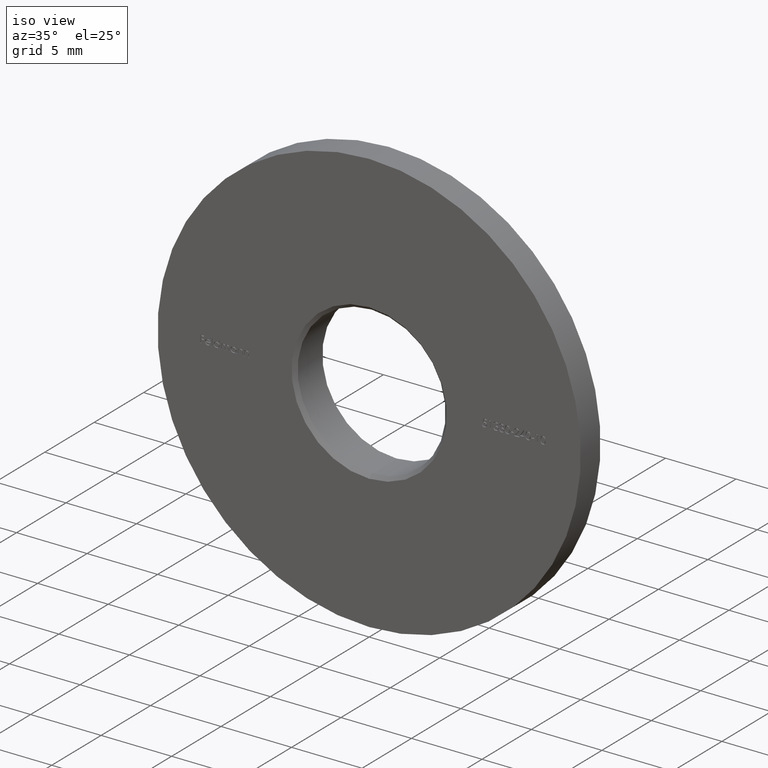
[diagram: clean part render]
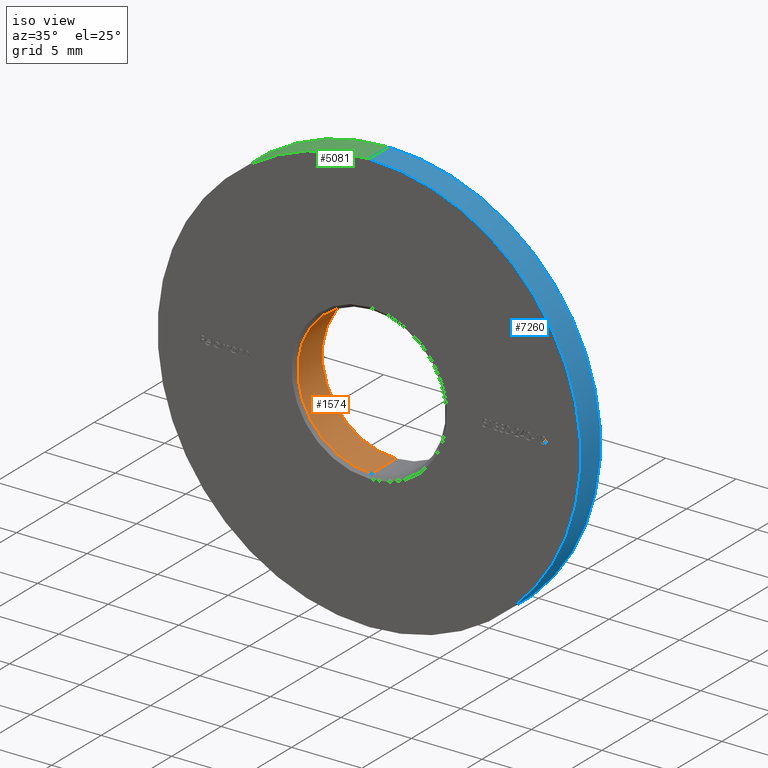
[diagram: same view with three faces highlighted in distinct colors, each labeled with its STEP entity id]
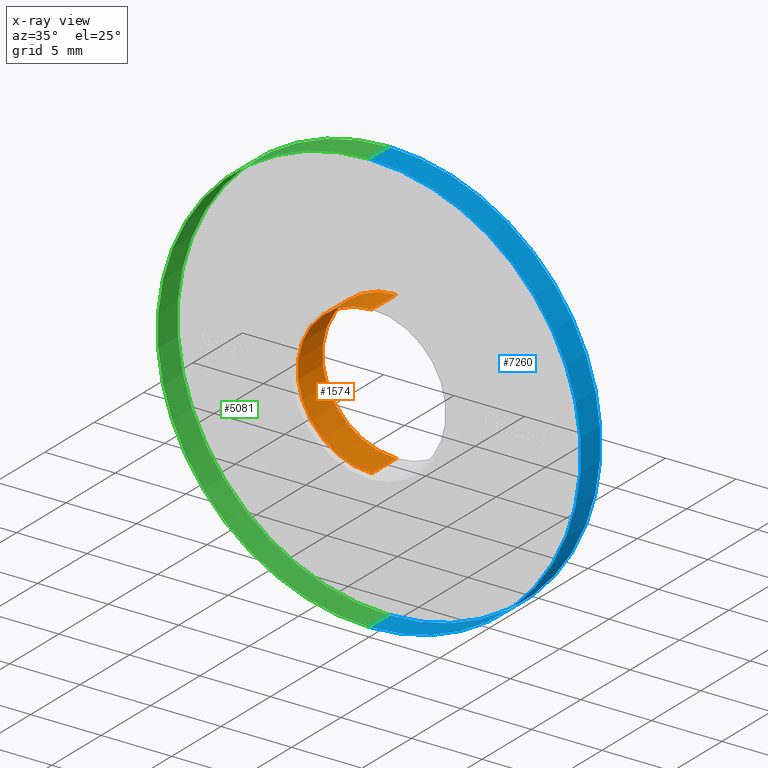
[diagram: x-ray of the same camera — body ghosted, the three highlighted faces saturated]
A machine part, iso view with three faces highlighted in distinct colors.
The next image is the same camera in x-ray (body ghosted, the three faces saturated) — at least one of them is partly hidden behind the body in this view.
Their STEP definitions:

[orange] entity #1574 — the highlighted cylindrical surface (partial cylindrical patch) has radius 5.25 mm, axis along (-0, -1, -0).
#484 = AXIS2_PLACEMENT_3D ( 'NONE', #12784, #2633, #3777 ) ;
#498 = ORIENTED_EDGE ( 'NONE', *, *, #10227, .T. ) ;
#776 = LINE ( 'NONE', #10137, #13591 ) ;
#1574 = ADVANCED_FACE ( 'NONE', ( #8796 ), #11076, .F. ) ;
#2006 = LINE ( 'NONE', #10420, #4312 ) ;
#2023 = CARTESIAN_POINT ( 'NONE',  ( 6.429395695523604153E-16, 2.750000000000000888, 5.250000000000000000 ) ) ;
#2185 = CARTESIAN_POINT ( 'NONE',  ( 6.429395695523604153E-16, 0.2500000000000028311, 5.250000000000000000 ) ) ;
#2633 = DIRECTION ( 'NONE',  ( 0.000000000000000000, 1.000000000000000000, 0.000000000000000000 ) ) ;
#3260 = CARTESIAN_POINT ( 'NONE',  ( 0.000000000000000000, 0.2500000000000028311, -5.250000000000000000 ) ) ;
#3777 = DIRECTION ( 'NONE',  ( 0.000000000000000000, 0.000000000000000000, 1.000000000000000000 ) ) ;
#4312 = VECTOR ( 'NONE', #10368, 1000.000000000000000 ) ;
#5314 = ORIENTED_EDGE ( 'NONE', *, *, #9237, .T. ) ;
#6275 = CIRCLE ( 'NONE', #7596, 5.250000000000000000 ) ;
#6494 = DIRECTION ( 'NONE',  ( 0.000000000000000000, 0.000000000000000000, -1.000000000000000000 ) ) ;
#7596 = AXIS2_PLACEMENT_3D ( 'NONE', #11353, #12336, #13640 ) ;
#7641 = CARTESIAN_POINT ( 'NONE',  ( 0.000000000000000000, 3.000000000000000000, 0.000000000000000000 ) ) ;
#7860 = VERTEX_POINT ( 'NONE', #9544 ) ;
#8796 = FACE_OUTER_BOUND ( 'NONE', #9459, .T. ) ;
#9217 = ORIENTED_EDGE ( 'NONE', *, *, #9672, .F. ) ;
#9237 = EDGE_CURVE ( 'NONE', #12273, #13131, #776, .T. ) ;
#9459 = EDGE_LOOP ( 'NONE', ( #498, #5314, #11307, #9217 ) ) ;
#9544 = CARTESIAN_POINT ( 'NONE',  ( 0.000000000000000000, 2.750000000000000888, -5.250000000000000000 ) ) ;
#9672 = EDGE_CURVE ( 'NONE', #7860, #14365, #2006, .T. ) ;
#10137 = CARTESIAN_POINT ( 'NONE',  ( 6.429395695523604153E-16, 3.000000000000000000, 5.250000000000000000 ) ) ;
#10227 = EDGE_CURVE ( 'NONE', #7860, #12273, #14509, .T. ) ;
#10237 = DIRECTION ( 'NONE',  ( -0.000000000000000000, -1.000000000000000000, -0.000000000000000000 ) ) ;
#10368 = DIRECTION ( 'NONE',  ( -0.000000000000000000, -1.000000000000000000, -0.000000000000000000 ) ) ;
#10397 = AXIS2_PLACEMENT_3D ( 'NONE', #7641, #11159, #6494 ) ;
#10420 = CARTESIAN_POINT ( 'NONE',  ( 0.000000000000000000, 3.000000000000000000, -5.250000000000000000 ) ) ;
#11076 = CYLINDRICAL_SURFACE ( 'NONE', #10397, 5.250000000000000000 ) ;
#11159 = DIRECTION ( 'NONE',  ( -0.000000000000000000, -1.000000000000000000, -0.000000000000000000 ) ) ;
#11307 = ORIENTED_EDGE ( 'NONE', *, *, #13122, .T. ) ;
#11353 = CARTESIAN_POINT ( 'NONE',  ( 0.000000000000000000, 0.2500000000000028311, 0.000000000000000000 ) ) ;
#12273 = VERTEX_POINT ( 'NONE', #2023 ) ;
#12336 = DIRECTION ( 'NONE',  ( -0.000000000000000000, -1.000000000000000000, -0.000000000000000000 ) ) ;
#12784 = CARTESIAN_POINT ( 'NONE',  ( 0.000000000000000000, 2.750000000000000888, 0.000000000000000000 ) ) ;
#13122 = EDGE_CURVE ( 'NONE', #13131, #14365, #6275, .T. ) ;
#13131 = VERTEX_POINT ( 'NONE', #2185 ) ;
#13591 = VECTOR ( 'NONE', #10237, 1000.000000000000000 ) ;
#13640 = DIRECTION ( 'NONE',  ( 0.000000000000000000, 0.000000000000000000, 1.000000000000000000 ) ) ;
#14365 = VERTEX_POINT ( 'NONE', #3260 ) ;
#14509 = CIRCLE ( 'NONE', #484, 5.250000000000000000 ) ;

[blue] entity #7260 — the highlighted cylindrical surface (partial cylindrical patch) has radius 15 mm, axis along (-0, -1, -0).
#585 = DIRECTION ( 'NONE',  ( 0.000000000000000000, -1.000000000000000000, 0.000000000000000000 ) ) ;
#1489 = CARTESIAN_POINT ( 'NONE',  ( 0.000000000000000000, 1.999999999999999112, -15.00000000000000000 ) ) ;
#2050 = VECTOR ( 'NONE', #11289, 1000.000000000000000 ) ;
#2072 = EDGE_CURVE ( 'NONE', #4242, #8375, #5009, .T. ) ;
#2632 = CARTESIAN_POINT ( 'NONE',  ( 0.000000000000000000, 0.000000000000000000, -15.00000000000000000 ) ) ;
#3118 = DIRECTION ( 'NONE',  ( -0.000000000000000000, -1.000000000000000000, -0.000000000000000000 ) ) ;
#3995 = DIRECTION ( 'NONE',  ( 0.000000000000000000, 1.000000000000000000, 0.000000000000000000 ) ) ;
#4214 = CARTESIAN_POINT ( 'NONE',  ( 0.000000000000000000, 1.999999999999999112, 0.000000000000000000 ) ) ;
#4242 = VERTEX_POINT ( 'NONE', #1489 ) ;
#4712 = CYLINDRICAL_SURFACE ( 'NONE', #12211, 15.00000000000000000 ) ;
#5009 = LINE ( 'NONE', #8836, #11441 ) ;
#5427 = DIRECTION ( 'NONE',  ( -0.000000000000000000, -1.000000000000000000, -0.000000000000000000 ) ) ;
#5713 = CARTESIAN_POINT ( 'NONE',  ( 1.836970198721029589E-15, 3.000000000000000000, 15.00000000000000000 ) ) ;
#5867 = AXIS2_PLACEMENT_3D ( 'NONE', #10970, #3995, #8711 ) ;
#6378 = EDGE_CURVE ( 'NONE', #12076, #7422, #13624, .T. ) ;
#7260 = ADVANCED_FACE ( 'NONE', ( #12355 ), #4712, .T. ) ;
#7422 = VERTEX_POINT ( 'NONE', #10841 ) ;
#7738 = DIRECTION ( 'NONE',  ( 0.000000000000000000, 0.000000000000000000, -1.000000000000000000 ) ) ;
#8259 = AXIS2_PLACEMENT_3D ( 'NONE', #4214, #585, #8568 ) ;
#8375 = VERTEX_POINT ( 'NONE', #2632 ) ;
#8437 = ORIENTED_EDGE ( 'NONE', *, *, #2072, .F. ) ;
#8568 = DIRECTION ( 'NONE',  ( 0.000000000000000000, 0.000000000000000000, 1.000000000000000000 ) ) ;
#8711 = DIRECTION ( 'NONE',  ( 0.000000000000000000, 0.000000000000000000, 1.000000000000000000 ) ) ;
#8836 = CARTESIAN_POINT ( 'NONE',  ( 0.000000000000000000, 3.000000000000000000, -15.00000000000000000 ) ) ;
#8870 = CARTESIAN_POINT ( 'NONE',  ( 1.836970198721029589E-15, 1.999999999999999112, 15.00000000000000000 ) ) ;
#10166 = CARTESIAN_POINT ( 'NONE',  ( 0.000000000000000000, 3.000000000000000000, 0.000000000000000000 ) ) ;
#10300 = EDGE_LOOP ( 'NONE', ( #10312, #10539, #12812, #8437 ) ) ;
#10312 = ORIENTED_EDGE ( 'NONE', *, *, #11773, .T. ) ;
#10539 = ORIENTED_EDGE ( 'NONE', *, *, #6378, .T. ) ;
#10841 = CARTESIAN_POINT ( 'NONE',  ( 1.836970198721029589E-15, 0.000000000000000000, 15.00000000000000000 ) ) ;
#10970 = CARTESIAN_POINT ( 'NONE',  ( 0.000000000000000000, 0.000000000000000000, 0.000000000000000000 ) ) ;
#11289 = DIRECTION ( 'NONE',  ( -0.000000000000000000, -1.000000000000000000, -0.000000000000000000 ) ) ;
#11372 = EDGE_CURVE ( 'NONE', #7422, #8375, #11806, .T. ) ;
#11441 = VECTOR ( 'NONE', #3118, 1000.000000000000000 ) ;
#11773 = EDGE_CURVE ( 'NONE', #4242, #12076, #12171, .T. ) ;
#11806 = CIRCLE ( 'NONE', #5867, 15.00000000000000000 ) ;
#12076 = VERTEX_POINT ( 'NONE', #8870 ) ;
#12171 = CIRCLE ( 'NONE', #8259, 15.00000000000000000 ) ;
#12211 = AXIS2_PLACEMENT_3D ( 'NONE', #10166, #5427, #7738 ) ;
#12355 = FACE_OUTER_BOUND ( 'NONE', #10300, .T. ) ;
#12812 = ORIENTED_EDGE ( 'NONE', *, *, #11372, .T. ) ;
#13624 = LINE ( 'NONE', #5713, #2050 ) ;

[green] entity #5081 — the highlighted cylindrical surface (partial cylindrical patch) has radius 15 mm, axis along (-0, -1, -0).
#1489 = CARTESIAN_POINT ( 'NONE',  ( 0.000000000000000000, 1.999999999999999112, -15.00000000000000000 ) ) ;
#2050 = VECTOR ( 'NONE', #11289, 1000.000000000000000 ) ;
#2072 = EDGE_CURVE ( 'NONE', #4242, #8375, #5009, .T. ) ;
#2215 = FACE_OUTER_BOUND ( 'NONE', #5871, .T. ) ;
#2632 = CARTESIAN_POINT ( 'NONE',  ( 0.000000000000000000, 0.000000000000000000, -15.00000000000000000 ) ) ;
#2963 = DIRECTION ( 'NONE',  ( 0.000000000000000000, 0.000000000000000000, -1.000000000000000000 ) ) ;
#3118 = DIRECTION ( 'NONE',  ( -0.000000000000000000, -1.000000000000000000, -0.000000000000000000 ) ) ;
#3230 = DIRECTION ( 'NONE',  ( 0.000000000000000000, 0.000000000000000000, 1.000000000000000000 ) ) ;
#3896 = AXIS2_PLACEMENT_3D ( 'NONE', #11833, #8479, #2963 ) ;
#4009 = AXIS2_PLACEMENT_3D ( 'NONE', #7893, #5488, #3230 ) ;
#4242 = VERTEX_POINT ( 'NONE', #1489 ) ;
#4525 = EDGE_CURVE ( 'NONE', #12076, #4242, #9717, .T. ) ;
#4574 = DIRECTION ( 'NONE',  ( 0.000000000000000000, 0.000000000000000000, 1.000000000000000000 ) ) ;
#5009 = LINE ( 'NONE', #8836, #11441 ) ;
#5081 = ADVANCED_FACE ( 'NONE', ( #2215 ), #5432, .T. ) ;
#5432 = CYLINDRICAL_SURFACE ( 'NONE', #3896, 15.00000000000000000 ) ;
#5488 = DIRECTION ( 'NONE',  ( 0.000000000000000000, 1.000000000000000000, 0.000000000000000000 ) ) ;
#5713 = CARTESIAN_POINT ( 'NONE',  ( 1.836970198721029589E-15, 3.000000000000000000, 15.00000000000000000 ) ) ;
#5871 = EDGE_LOOP ( 'NONE', ( #13491, #13657, #6711, #10510 ) ) ;
#6378 = EDGE_CURVE ( 'NONE', #12076, #7422, #13624, .T. ) ;
#6711 = ORIENTED_EDGE ( 'NONE', *, *, #2072, .T. ) ;
#7422 = VERTEX_POINT ( 'NONE', #10841 ) ;
#7893 = CARTESIAN_POINT ( 'NONE',  ( 0.000000000000000000, 0.000000000000000000, 0.000000000000000000 ) ) ;
#8375 = VERTEX_POINT ( 'NONE', #2632 ) ;
#8479 = DIRECTION ( 'NONE',  ( -0.000000000000000000, -1.000000000000000000, -0.000000000000000000 ) ) ;
#8836 = CARTESIAN_POINT ( 'NONE',  ( 0.000000000000000000, 3.000000000000000000, -15.00000000000000000 ) ) ;
#8870 = CARTESIAN_POINT ( 'NONE',  ( 1.836970198721029589E-15, 1.999999999999999112, 15.00000000000000000 ) ) ;
#9227 = CARTESIAN_POINT ( 'NONE',  ( 0.000000000000000000, 1.999999999999999112, 0.000000000000000000 ) ) ;
#9607 = EDGE_CURVE ( 'NONE', #8375, #7422, #14640, .T. ) ;
#9717 = CIRCLE ( 'NONE', #11626, 15.00000000000000000 ) ;
#10510 = ORIENTED_EDGE ( 'NONE', *, *, #9607, .T. ) ;
#10841 = CARTESIAN_POINT ( 'NONE',  ( 1.836970198721029589E-15, 0.000000000000000000, 15.00000000000000000 ) ) ;
#11289 = DIRECTION ( 'NONE',  ( -0.000000000000000000, -1.000000000000000000, -0.000000000000000000 ) ) ;
#11441 = VECTOR ( 'NONE', #3118, 1000.000000000000000 ) ;
#11626 = AXIS2_PLACEMENT_3D ( 'NONE', #9227, #13779, #4574 ) ;
#11833 = CARTESIAN_POINT ( 'NONE',  ( 0.000000000000000000, 3.000000000000000000, 0.000000000000000000 ) ) ;
#12076 = VERTEX_POINT ( 'NONE', #8870 ) ;
#13491 = ORIENTED_EDGE ( 'NONE', *, *, #6378, .F. ) ;
#13624 = LINE ( 'NONE', #5713, #2050 ) ;
#13657 = ORIENTED_EDGE ( 'NONE', *, *, #4525, .T. ) ;
#13779 = DIRECTION ( 'NONE',  ( 0.000000000000000000, -1.000000000000000000, 0.000000000000000000 ) ) ;
#14640 = CIRCLE ( 'NONE', #4009, 15.00000000000000000 ) ;